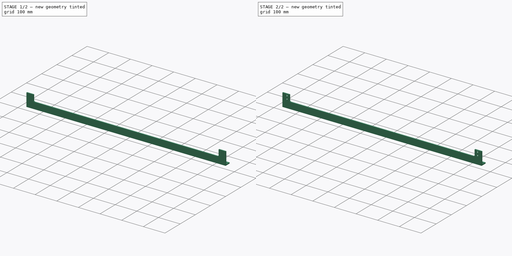
[diagram: build sequence overview — one tinted view per stage of 2, left to right]
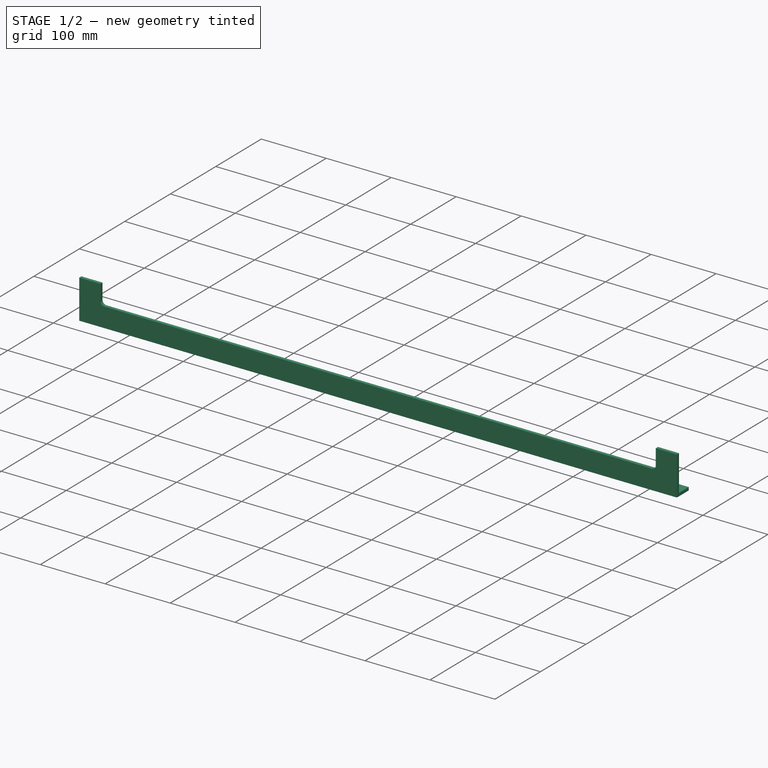
[diagram: stage 1 of 2 — iso view after this stage's code; geometry added in this stage tinted green]
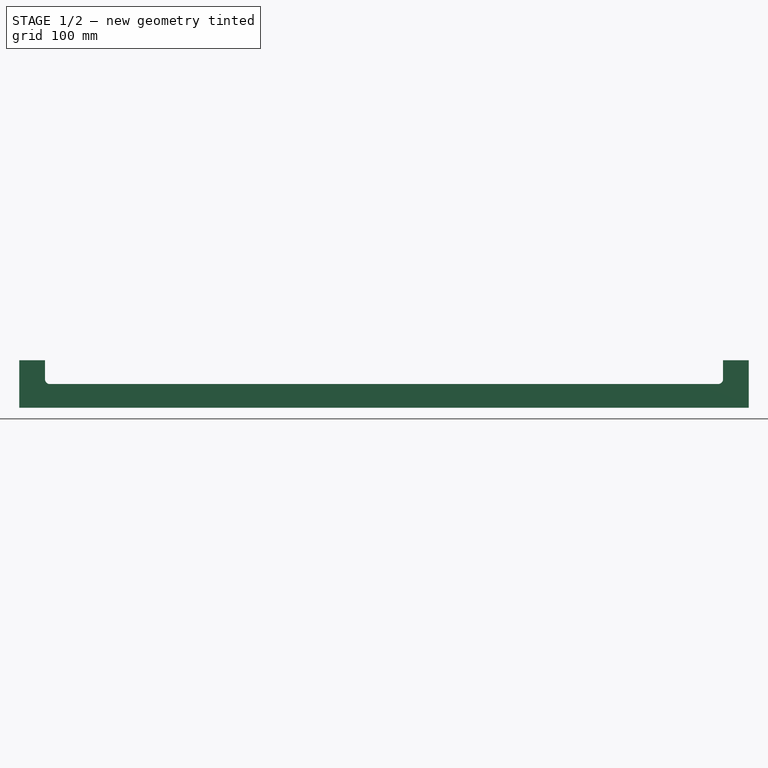
[diagram: stage 1 of 2 — front view after this stage's code; geometry added in this stage tinted green]
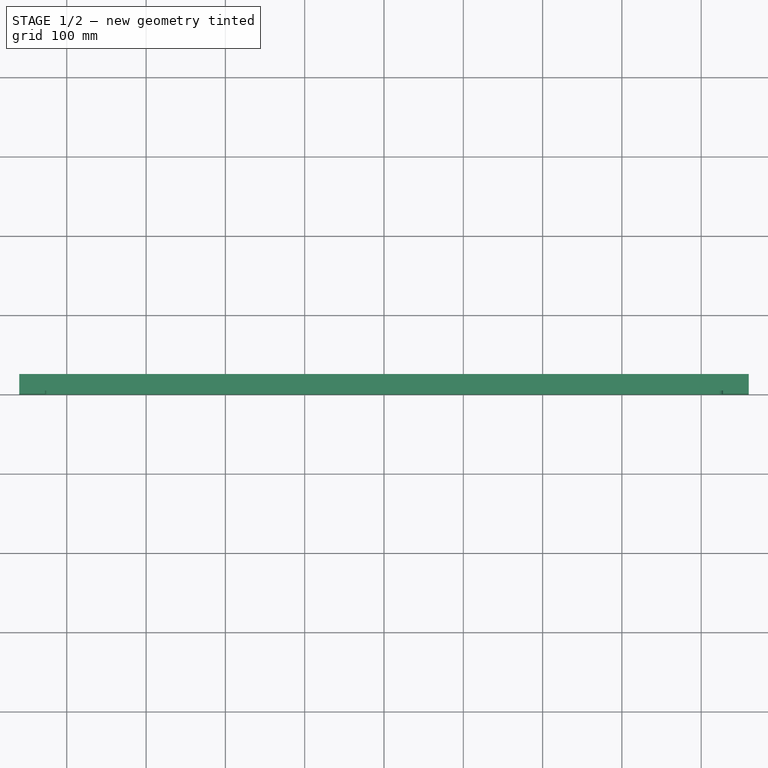
[diagram: stage 1 of 2 — top view after this stage's code; geometry added in this stage tinted green]
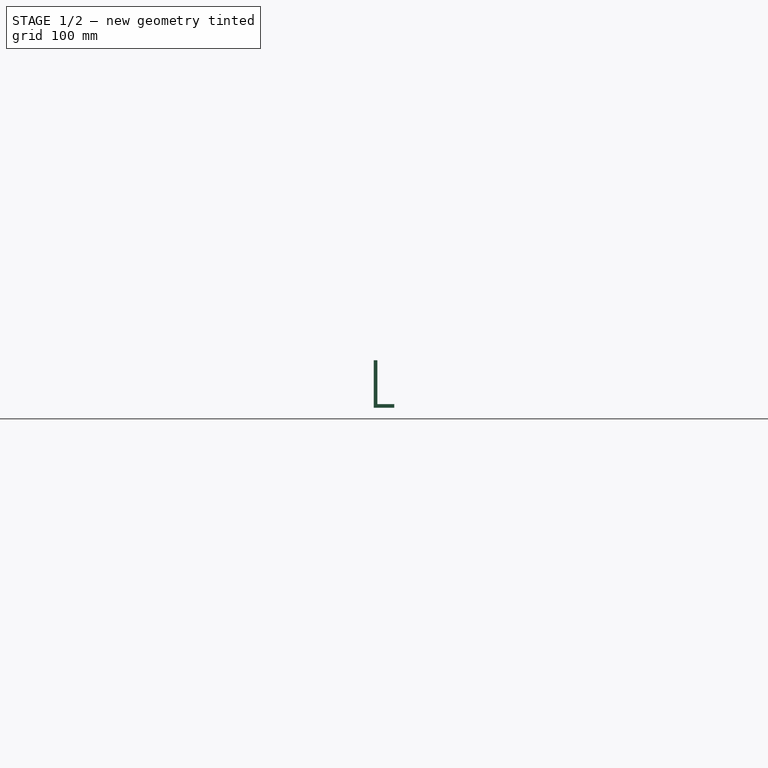
[diagram: stage 1 of 2 — right view after this stage's code; geometry added in this stage tinted green]
FCSTD DOCUMENT  (FreeCAD 1.1R40971 (Git))
Label: x-frame
License: All rights reserved
LicenseURL: http://en.wikipedia.org/wiki/All_rights_reserved
objects: Sketcher::SketchObject×4, PartDesign::Pocket×2, PartDesign::Pad×1, PartDesign::Hole×1, PartDesign::Body×1, App::Point×1
note: 21 computed .brp shape members not serialized (recipe doc carries the construction recipe); baked Part::Feature solids carry a one-line shape summary decoded from their .brp

FEATURE [Sketcher::SketchObject] Sketch
  ArcFitTolerance = 0
  ExternalTypes = [0]
  FullyConstrained = true
  MakeInternals = false
  Placement = pos=(0,0,0) rot=(0.57735,0.57735,0.57735;2.0944rad)
  sketch-geometry (6):
    g0: LineSegment StartX=0 StartY=60 StartZ=0 EndX=4.7 EndY=60 EndZ=0
    g1: LineSegment StartX=26 StartY=4.7 StartZ=0 EndX=26 EndY=0 EndZ=0
    g2: LineSegment StartX=26 StartY=0 StartZ=0 EndX=0 EndY=0 EndZ=0
    g3: LineSegment StartX=0 StartY=0 StartZ=0 EndX=0 EndY=60 EndZ=0
    g4: LineSegment StartX=26 StartY=4.7 StartZ=0 EndX=4.7 EndY=4.7 EndZ=0
    g5: LineSegment StartX=4.7 StartY=4.7 StartZ=0 EndX=4.7 EndY=60 EndZ=0
  constraints (17):
    c: Coincident(g1,g2)
    c: Coincident(g2,g3)
    c: Coincident(g3,g0)
    c: Horizontal(g0)
    c: Horizontal(g2)
    c: Vertical(g1)
    c: Vertical(g3)
    c: Coincident(g4,g5)
    c: Horizontal(g4)
    c: Vertical(g5)
    c: Coincident(g5,g0)
    c: Coincident(g4,g1)
    c: Equal(g1,g0)
    c: DistanceY(g1,g1) = 4.7
    c: DistanceX(g2,g2) = 26
    c: DistanceY(g3,g3) = 60
    c: Coincident(g2,g-1)
FEATURE [PartDesign::Pad] Pad
  Direction = (1,1e-16,-1e-16)
  Length = 920
  Length2 = 10
  Midplane = true
  Placement = pos=(0,0,0) rot=(0.57735,0.57735,0.57735;2.0944rad)
  Profile = -> Sketch
  ReferenceAxis = -> Sketch [N_Axis]
  Suppressed = false
  Type = 0
FEATURE [Sketcher::SketchObject] Sketch001
  ArcFitTolerance = 0
  AttachmentSupport = -> [Pad]
  ExternalTypes = [0]
  FullyConstrained = true
  MakeInternals = false
  MapMode = 5
  Placement = pos=(0,0,0) rot=(0.57735,0.57735,-0.57735;2.0944rad)
  sketch-geometry (8):
    g0: LineSegment StartX=-70 StartY=-427.5 StartZ=0 EndX=-36 EndY=-427.5 EndZ=0
    g1: LineSegment StartX=-30 StartY=-421.5 StartZ=0 EndX=-30 EndY=421.5 EndZ=0
    g2: LineSegment StartX=-36 StartY=427.5 StartZ=0 EndX=-70 EndY=427.5 EndZ=0
    g3: LineSegment StartX=-70 StartY=427.5 StartZ=0 EndX=-70 EndY=-427.5 EndZ=0
    g4: ArcOfCircle CenterX=-36 CenterY=-421.5 CenterZ=0 NormalX=0 NormalY=0 NormalZ=1 AngleXU=0 Radius=6 StartAngle=4.71239 EndAngle=6.28319
    g5: GeomPoint [constr] X=-30 Y=-427.5 Z=0
    g6: ArcOfCircle CenterX=-36 CenterY=421.5 CenterZ=0 NormalX=0 NormalY=0 NormalZ=1 AngleXU=0 Radius=6 StartAngle=-8.9e-13 EndAngle=1.5708
    g7: GeomPoint [constr] X=-30 Y=427.5 Z=0
  constraints (19):
    c: Coincident(g2,g3)
    c: Coincident(g3,g0)
    c: Horizontal(g0)
    c: Horizontal(g2)
    c: Vertical(g1)
    c: DistanceX(g7,g-1) = 30
    c: PointOnObject(g5,g0)
    c: PointOnObject(g5,g1)
    c: Tangent(g0,g4) = -1.5708
    c: Tangent(g1,g4) = -1.5708
    c: PointOnObject(g7,g1)
    c: PointOnObject(g7,g2)
    c: Tangent(g1,g6) = -1.5708
    c: Tangent(g2,g6) = -1.5708
    c: Equal(g6,g4)
    c: Diameter(g4) = 12
    c: DistanceX(g0,g-1) = 70
    c: Symmetric(g2,g0,g-1)
    c: DistanceY(g3,g3) = 855
FEATURE [PartDesign::Pocket] Pocket
  BaseFeature = -> Pad
  Direction = (0,1,0)
  Length = 5
  Length2 = 5
  Midplane = true
  Placement = pos=(0,0,0) rot=(0.57735,0.57735,0.57735;2.0944rad)
  Profile = -> Sketch001
  ReferenceAxis = -> Sketch001 [N_Axis]
  Suppressed = false
  Type = 1
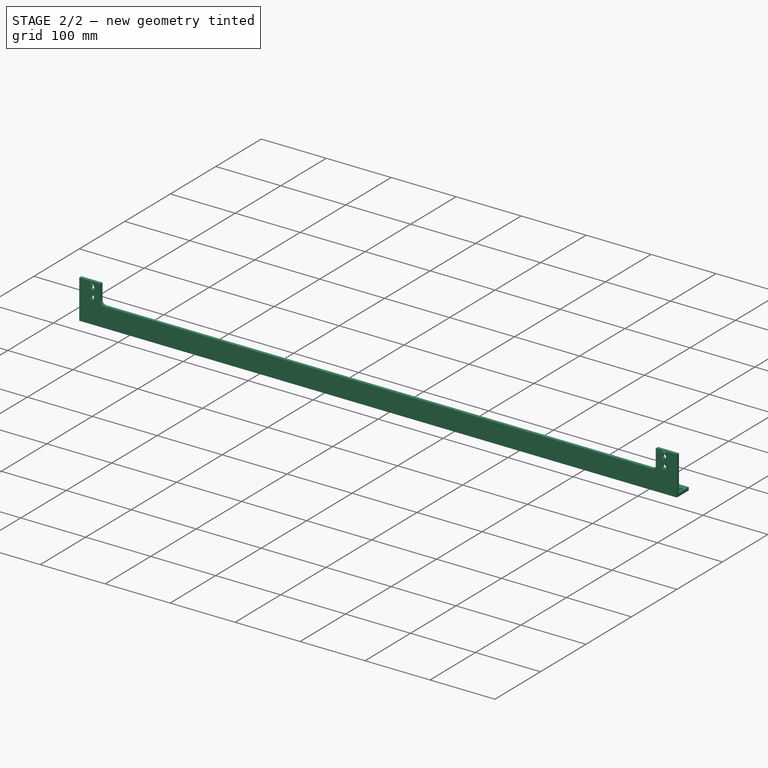
[diagram: stage 2 of 2 — iso view after this stage's code; geometry added in this stage tinted green]
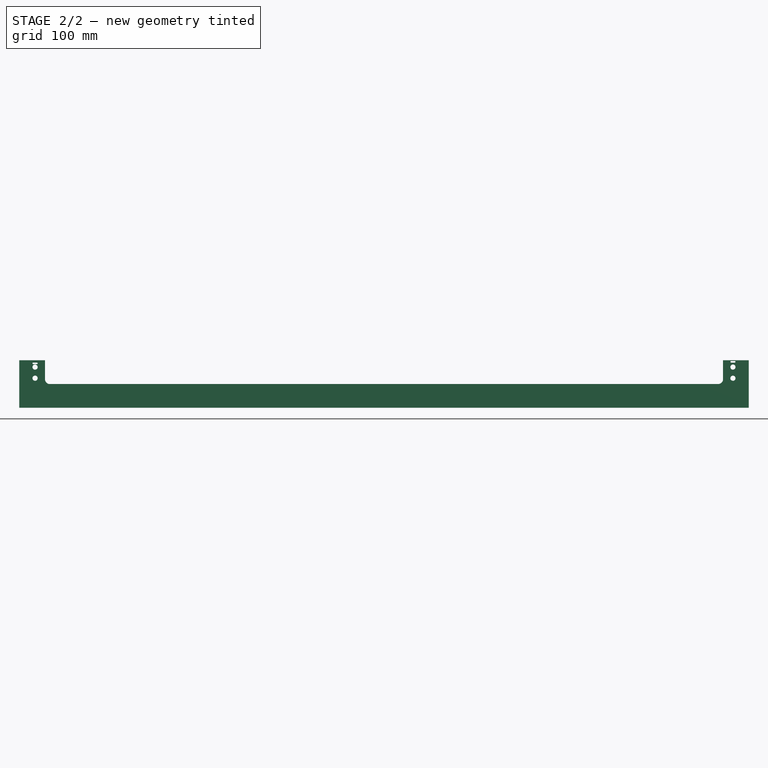
[diagram: stage 2 of 2 — front view after this stage's code; geometry added in this stage tinted green]
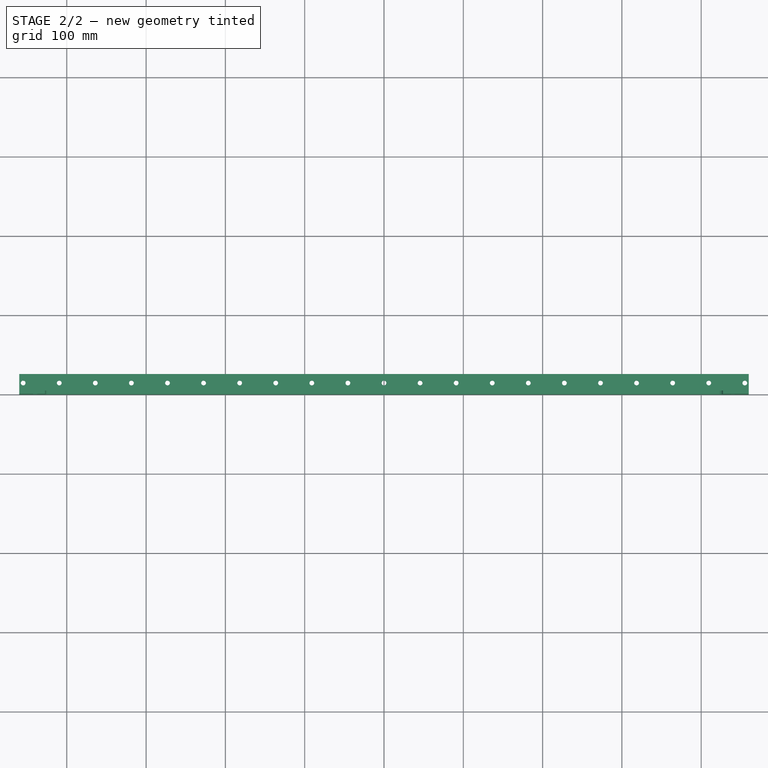
[diagram: stage 2 of 2 — top view after this stage's code; geometry added in this stage tinted green]
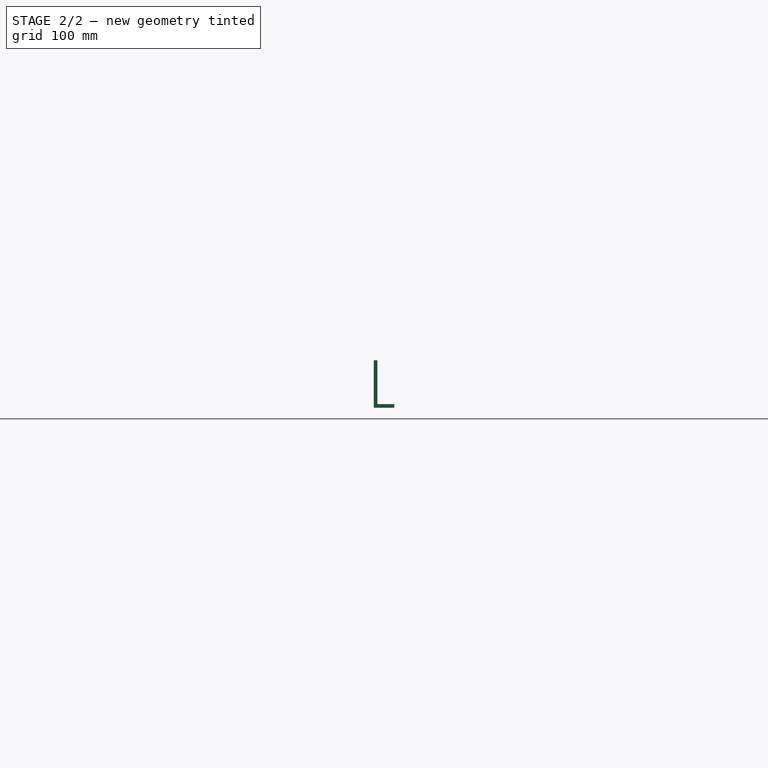
[diagram: stage 2 of 2 — right view after this stage's code; geometry added in this stage tinted green]
FEATURE [Sketcher::SketchObject] Sketch002
  ArcFitTolerance = 0
  AttachmentSupport = -> [Pocket]
  ExternalTypes = [0]
  FullyConstrained = true
  MakeInternals = false
  MapMode = 5
  Placement = pos=(2.1e-15,-2.6e-15,4.7) rot=(0,0,-1;1.5708rad)
  sketch-geometry (41):
    g0: Circle CenterX=-14.7 CenterY=455 CenterZ=0 NormalX=0 NormalY=0 NormalZ=1 AngleXU=0 Radius=2.5
    g1: Circle CenterX=-14.7 CenterY=409.5 CenterZ=0 NormalX=0 NormalY=0 NormalZ=1 AngleXU=0 Radius=2.5
    g2: LineSegment [constr] StartX=-14.7 StartY=455 StartZ=0 EndX=-14.7 EndY=409.5 EndZ=0
    g3: Circle CenterX=-14.7 CenterY=364 CenterZ=0 NormalX=0 NormalY=0 NormalZ=1 AngleXU=0 Radius=2.5
    g4: LineSegment [constr] StartX=-14.7 StartY=409.5 StartZ=0 EndX=-14.7 EndY=364 EndZ=0
    g5: Circle CenterX=-14.7 CenterY=318.5 CenterZ=0 NormalX=0 NormalY=0 NormalZ=1 AngleXU=0 Radius=2.5
    g6: LineSegment [constr] StartX=-14.7 StartY=364 StartZ=0 EndX=-14.7 EndY=318.5 EndZ=0
    g7: Circle CenterX=-14.7 CenterY=273 CenterZ=0 NormalX=0 NormalY=0 NormalZ=1 AngleXU=0 Radius=2.5
    g8: LineSegment [constr] StartX=-14.7 StartY=318.5 StartZ=0 EndX=-14.7 EndY=273 EndZ=0
    g9: Circle CenterX=-14.7 CenterY=227.5 CenterZ=0 NormalX=0 NormalY=0 NormalZ=1 AngleXU=0 Radius=2.5
    g10: LineSegment [constr] StartX=-14.7 StartY=273 StartZ=0 EndX=-14.7 EndY=227.5 EndZ=0
    g11: Circle CenterX=-14.7 CenterY=182 CenterZ=0 NormalX=0 NormalY=0 NormalZ=1 AngleXU=0 Radius=2.5
    g12: LineSegment [constr] StartX=-14.7 StartY=227.5 StartZ=0 EndX=-14.7 EndY=182 EndZ=0
    g13: Circle CenterX=-14.7 CenterY=136.5 CenterZ=0 NormalX=0 NormalY=0 NormalZ=1 AngleXU=0 Radius=2.5
    g14: LineSegment [constr] StartX=-14.7 StartY=182 StartZ=0 EndX=-14.7 EndY=136.5 EndZ=0
    g15: Circle CenterX=-14.7 CenterY=91 CenterZ=0 NormalX=0 NormalY=0 NormalZ=1 AngleXU=0 Radius=2.5
    g16: LineSegment [constr] StartX=-14.7 StartY=136.5 StartZ=0 EndX=-14.7 EndY=91 EndZ=0
    g17: Circle CenterX=-14.7 CenterY=45.5 CenterZ=0 NormalX=0 NormalY=0 NormalZ=1 AngleXU=0 Radius=2.5
    g18: LineSegment [constr] StartX=-14.7 StartY=91 StartZ=0 EndX=-14.7 EndY=45.5 EndZ=0
    g19: Circle CenterX=-14.7 CenterY=0 CenterZ=0 NormalX=0 NormalY=0 NormalZ=1 AngleXU=0 Radius=2.5
    g20: LineSegment [constr] StartX=-14.7 StartY=45.5 StartZ=0 EndX=-14.7 EndY=0 EndZ=0
    g21: Circle CenterX=-14.7 CenterY=-45.5 CenterZ=0 NormalX=0 NormalY=0 NormalZ=1 AngleXU=0 Radius=2.5
    g22: LineSegment [constr] StartX=-14.7 StartY=0 StartZ=0 EndX=-14.7 EndY=-45.5 EndZ=0
    g23: Circle CenterX=-14.7 CenterY=-91 CenterZ=0 NormalX=0 NormalY=0 NormalZ=1 AngleXU=0 Radius=2.5
    g24: LineSegment [constr] StartX=-14.7 StartY=-45.5 StartZ=0 EndX=-14.7 EndY=-91 EndZ=0
    g25: Circle CenterX=-14.7 CenterY=-136.5 CenterZ=0 NormalX=0 NormalY=0 NormalZ=1 AngleXU=0 Radius=2.5
    g26: LineSegment [constr] StartX=-14.7 StartY=-91 StartZ=0 EndX=-14.7 EndY=-136.5 EndZ=0
    g27: Circle CenterX=-14.7 CenterY=-182 CenterZ=0 NormalX=0 NormalY=0 NormalZ=1 AngleXU=0 Radius=2.5
    g28: LineSegment [constr] StartX=-14.7 StartY=-136.5 StartZ=0 EndX=-14.7 EndY=-182 EndZ=0
    g29: Circle CenterX=-14.7 CenterY=-227.5 CenterZ=0 NormalX=0 NormalY=0 NormalZ=1 AngleXU=0 Radius=2.5
    g30: LineSegment [constr] StartX=-14.7 StartY=-182 StartZ=0 EndX=-14.7 EndY=-227.5 EndZ=0
    g31: Circle CenterX=-14.7 CenterY=-273 CenterZ=0 NormalX=0 NormalY=0 NormalZ=1 AngleXU=0 Radius=2.5
    g32: LineSegment [constr] StartX=-14.7 StartY=-227.5 StartZ=0 EndX=-14.7 EndY=-273 EndZ=0
    g33: Circle CenterX=-14.7 CenterY=-318.5 CenterZ=0 NormalX=0 NormalY=0 NormalZ=1 AngleXU=0 Radius=2.5
    g34: LineSegment [constr] StartX=-14.7 StartY=-273 StartZ=0 EndX=-14.7 EndY=-318.5 EndZ=0
    g35: Circle CenterX=-14.7 CenterY=-364 CenterZ=0 NormalX=0 NormalY=0 NormalZ=1 AngleXU=0 Radius=2.5
    g36: LineSegment [constr] StartX=-14.7 StartY=-318.5 StartZ=0 EndX=-14.7 EndY=-364 EndZ=0
    g37: Circle CenterX=-14.7 CenterY=-409.5 CenterZ=0 NormalX=0 NormalY=0 NormalZ=1 AngleXU=0 Radius=2.5
    g38: LineSegment [constr] StartX=-14.7 StartY=-364 StartZ=0 EndX=-14.7 EndY=-409.5 EndZ=0
    g39: Circle CenterX=-14.7 CenterY=-455 CenterZ=0 NormalX=0 NormalY=0 NormalZ=1 AngleXU=0 Radius=2.5
    g40: LineSegment [constr] StartX=-14.7 StartY=-409.5 StartZ=0 EndX=-14.7 EndY=-455 EndZ=0
  constraints (102):
    c: Diameter(g0) = 5
    c: Equal(g0,g1) = 5
    c: Coincident(g0,g2)
    c: Coincident(g1,g2)
    c: Distance(g2) = 45.5
    c: Equal(g0,g3) = 5
    c: Coincident(g1,g4)
    c: Coincident(g3,g4)
    c: Equal(g2,g4)
    c: Parallel(g4,g2)
    c: Equal(g0,g5) = 5
    c: Coincident(g3,g6)
    c: Coincident(g5,g6)
    c: Equal(g2,g6)
    c: Parallel(g6,g2)
    c: Equal(g0,g7) = 5
    c: Coincident(g5,g8)
    c: Coincident(g7,g8)
    c: Equal(g2,g8)
    c: Parallel(g8,g2)
    c: Equal(g0,g9) = 5
    c: Coincident(g7,g10)
    c: Coincident(g9,g10)
    c: Equal(g2,g10)
    c: Parallel(g10,g2)
    c: Equal(g0,g11) = 5
    c: Coincident(g9,g12)
    c: Coincident(g11,g12)
    c: Equal(g2,g12)
    c: Parallel(g12,g2)
    c: Equal(g0,g13) = 5
    c: Coincident(g11,g14)
    c: Coincident(g13,g14)
    c: Equal(g2,g14)
    c: Parallel(g14,g2)
    c: Equal(g0,g15) = 5
    c: Coincident(g13,g16)
    c: Coincident(g15,g16)
    c: Equal(g2,g16)
    c: Parallel(g16,g2)
    c: Equal(g0,g17) = 5
    c: Coincident(g15,g18)
    c: Coincident(g17,g18)
    c: Equal(g2,g18)
    c: Parallel(g18,g2)
    c: Equal(g0,g19) = 5
    c: Coincident(g17,g20)
    c: Coincident(g19,g20)
    c: Equal(g2,g20)
    c: Parallel(g20,g2)
    c: Equal(g0,g21) = 5
    c: Coincident(g19,g22)
    c: Coincident(g21,g22)
    c: Equal(g2,g22)
    c: Parallel(g22,g2)
    c: Equal(g0,g23) = 5
    c: Coincident(g21,g24)
    c: Coincident(g23,g24)
    c: Equal(g2,g24)
    c: Parallel(g24,g2)
    c: Equal(g0,g25) = 5
    c: Coincident(g23,g26)
    c: Coincident(g25,g26)
    c: Equal(g2,g26)
    c: Parallel(g26,g2)
    c: Equal(g0,g27) = 5
    c: Coincident(g25,g28)
    c: Coincident(g27,g28)
    c: Equal(g2,g28)
    c: Parallel(g28,g2)
    c: Equal(g0,g29) = 5
    c: Coincident(g27,g30)
    c: Coincident(g29,g30)
    c: Equal(g2,g30)
    c: Parallel(g30,g2)
    c: Equal(g0,g31) = 5
    c: Coincident(g29,g32)
    c: Coincident(g31,g32)
    c: Equal(g2,g32)
    c: Parallel(g32,g2)
    c: Equal(g0,g33) = 5
    c: Coincident(g31,g34)
    c: Coincident(g33,g34)
    c: Equal(g2,g34)
    c: Parallel(g34,g2)
    c: Equal(g0,g35) = 5
    c: Coincident(g33,g36)
    c: Coincident(g35,g36)
    c: Equal(g2,g36)
    c: Parallel(g36,g2)
    c: Equal(g0,g37) = 5
    c: Coincident(g35,g38)
    c: Coincident(g37,g38)
    c: Equal(g2,g38)
    c: Parallel(g38,g2)
    c: Equal(g0,g39) = 5
    c: Coincident(g37,g40)
    c: Coincident(g39,g40)
    c: Equal(g2,g40)
    c: Parallel(g40,g2)
    c: DistanceX(g39,g-1) = 14.7
    c: Symmetric(g39,g0,g-1)
FEATURE [PartDesign::Hole] Hole
  BaseFeature = -> Pocket
  CustomThreadClearance = 0
  Depth = 25
  DepthType = 0
  Diameter = 6
  DrillForDepth = false
  DrillPoint = 1
  DrillPointAngle = 118
  HoleCutCountersinkAngle = 90
  HoleCutCustomValues = false
  HoleCutDepth = 0
  HoleCutDiameter = 6.1
  HoleCutType = 0
  ModelThread = false
  Placement = pos=(0,0,0) rot=(0.57735,0.57735,0.57735;2.0944rad)
  Profile = -> Sketch002
  Suppressed = false
  Tapered = false
  TaperedAngle = 90
  ThreadClass = 0
  ThreadDepth = 25
  ThreadDepthType = 0
  ThreadDiameter = 6
  ThreadDirection = 0
  ThreadFit = 0
  ThreadSize = 0
  ThreadType = 0
  Threaded = false
  UseCustomThreadClearance = false
FEATURE [Sketcher::SketchObject] Sketch003
  ArcFitTolerance = 0
  AttachmentSupport = -> [Hole]
  ExternalTypes = [0]
  FullyConstrained = true
  MakeInternals = false
  MapMode = 5
  Placement = pos=(-5.7e-15,4.7,3.7e-15) rot=(-0.57735,-0.57735,-0.57735;2.0944rad)
  sketch-geometry (18):
    g0: Circle CenterX=37.3 CenterY=-440 CenterZ=0 NormalX=0 NormalY=0 NormalZ=1 AngleXU=0 Radius=3.25
    g1: Circle CenterX=51.3 CenterY=-440 CenterZ=0 NormalX=0 NormalY=0 NormalZ=1 AngleXU=0 Radius=3.25
    g2: ArcOfCircle CenterX=56 CenterY=-437.75 CenterZ=0 NormalX=0 NormalY=0 NormalZ=1 AngleXU=0 Radius=1 StartAngle=2.4027e-12 EndAngle=3.14159
    g3: ArcOfCircle CenterX=56 CenterY=-442.25 CenterZ=0 NormalX=0 NormalY=0 NormalZ=1 AngleXU=0 Radius=1 StartAngle=3.14159 EndAngle=6.28319
    g4: LineSegment StartX=57 StartY=-437.75 StartZ=0 EndX=57 EndY=-442.25 EndZ=0
    g5: LineSegment StartX=55 StartY=-437.75 StartZ=0 EndX=55 EndY=-442.25 EndZ=0
    g6: Circle CenterX=37.3 CenterY=440 CenterZ=0 NormalX=0 NormalY=0 NormalZ=1 AngleXU=0 Radius=3.25
    g7: Circle CenterX=51.3 CenterY=440 CenterZ=0 NormalX=0 NormalY=0 NormalZ=1 AngleXU=0 Radius=3.25
    g8: LineSegment StartX=57 StartY=437.75 StartZ=0 EndX=57 EndY=442.25 EndZ=0
    g9: LineSegment StartX=59 StartY=442.25 StartZ=0 EndX=59 EndY=437.75 EndZ=0
    g10: ArcOfCircle CenterX=58 CenterY=437.75 CenterZ=0 NormalX=0 NormalY=0 NormalZ=1 AngleXU=0 Radius=1 StartAngle=3.14159 EndAngle=6.28319
    g11: ArcOfCircle CenterX=58 CenterY=442.25 CenterZ=0 NormalX=0 NormalY=0 NormalZ=1 AngleXU=0 Radius=1 StartAngle=5.7e-15 EndAngle=3.14159
    g12: LineSegment [constr] StartX=37.3 StartY=-440 StartZ=0 EndX=51.3 EndY=-440 EndZ=0
    g13: LineSegment [constr] StartX=51.3 StartY=-440 StartZ=0 EndX=57 EndY=-440 EndZ=0
    g14: LineSegment [constr] StartX=37.3 StartY=440 StartZ=0 EndX=51.3 EndY=440 EndZ=0
    g15: LineSegment [constr] StartX=51.3 StartY=440 StartZ=0 EndX=57 EndY=440 EndZ=0
    g16: GeomPoint [constr] X=51.3 Y=-443.25 Z=0
    g17: GeomPoint [constr] X=56 Y=-443.25 Z=0
  constraints (43):
    c: Equal(g0,g1)
    c: Diameter(g1) = 6.5
    c: Horizontal(g0,g1)
    c: DistanceX(g0,g1) = 14
    c: Parallel(g5,g4)
    c: Tangent(g2,g4) = 1.5708
    c: Tangent(g3,g5) = -1.5708
    c: Diameter(g2) = 2
    c: Vertical(g2,g3)
    c: Tangent(g2,g5) = -1.5708
    c: Tangent(g3,g4) = 1.5708
    c: DistanceX(g1,g2) = 3.7
    c: Vertical(g8)
    c: Vertical(g9)
    c: Equal(g0,g6)
    c: Equal(g6,g7)
    c: Horizontal(g6,g7)
    c: Tangent(g10,g9) = 1.5708
    c: Tangent(g10,g8) = 1.5708
    c: Tangent(g11,g8) = 1.5708
    c: Tangent(g11,g9) = 1.5708
    c: Equal(g2,g11)
    c: Equal(g8,g4)
    c: Coincident(g12,g0)
    c: Coincident(g12,g1)
    c: Coincident(g13,g1)
    c: Horizontal(g13)
    c: Symmetric(g2,g3,g13)
    c: Coincident(g14,g6)
    c: Coincident(g14,g7)
    c: Coincident(g15,g7)
    c: Horizontal(g15)
    c: Symmetric(g8,g8,g15)
    c: Equal(g15,g13)
    c: Equal(g12,g14)
    c: Symmetric(g6,g0,g-1)
    c: DistanceY(g0,g6) = 880
    c: PointOnObject(g16,g1)
    c: PointOnObject(g17,g3)
    c: Vertical(g17,g3)
    c: Vertical(g16,g1)
    c: Horizontal(g16,g17)
    c: DistanceX(g-1,g2) = 57
FEATURE [PartDesign::Pocket] Pocket001
  BaseFeature = -> Hole
  Direction = (1e-15,-1,1e-16)
  Length = 5
  Length2 = 5
  Placement = pos=(0,0,0) rot=(0.57735,0.57735,0.57735;2.0944rad)
  Profile = -> Sketch003
  ReferenceAxis = -> Sketch003 [N_Axis]
  Suppressed = false
  Type = 1
FEATURE [PartDesign::Body] Body
  AllowCompound = false
  Group = -> [Sketch,Pad,Sketch001,Pocket,Sketch002,Hole,Sketch003,Pocket001]
  Origin = -> Origin
  Tip = -> Pocket001
FEATURE [App::Point] Origin001  label="Origin"
  Role = Origin
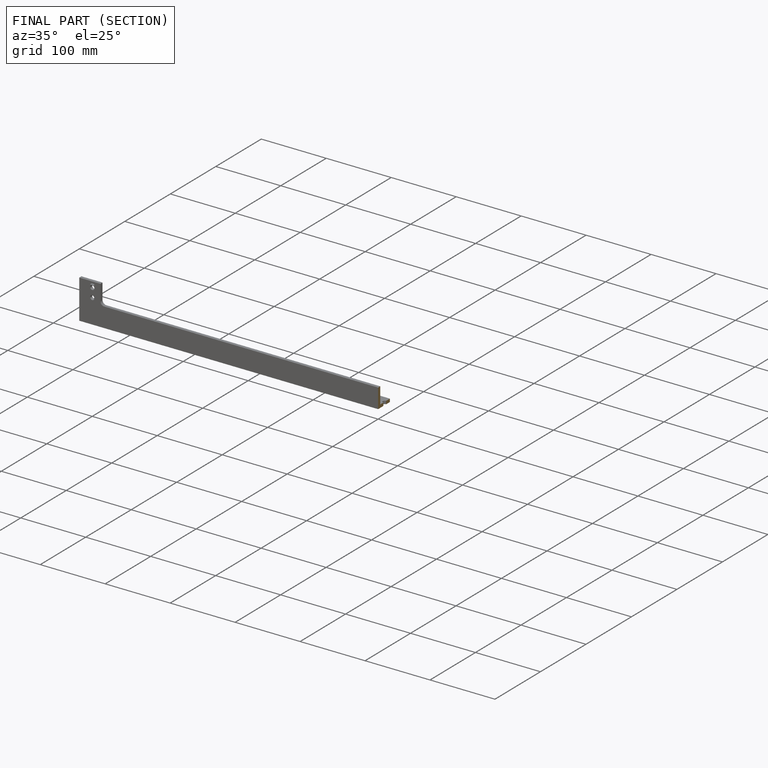
[diagram: finished part — half-section view (interior)]
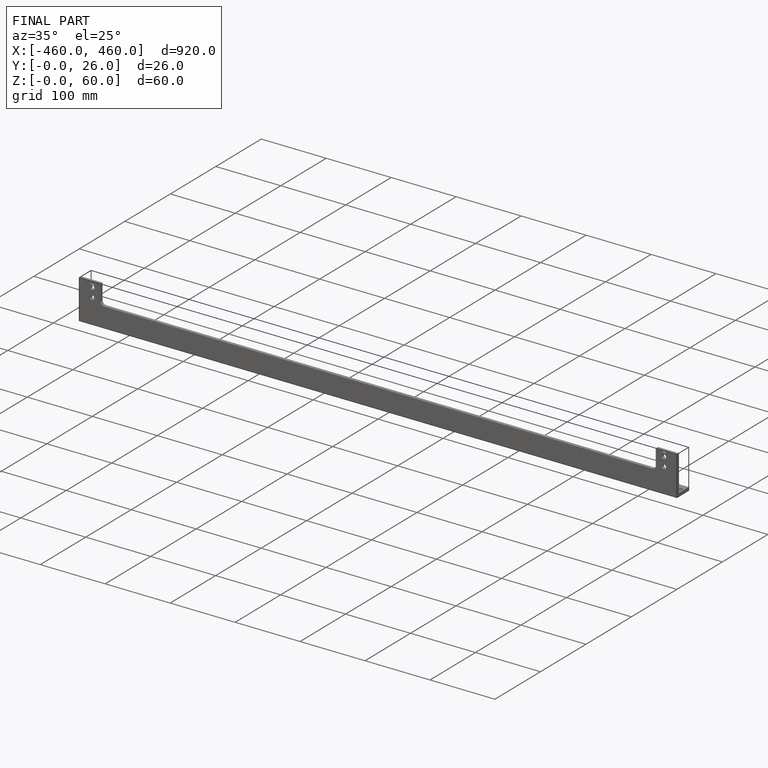
[diagram: finished part — iso view with bounding-box wireframe]
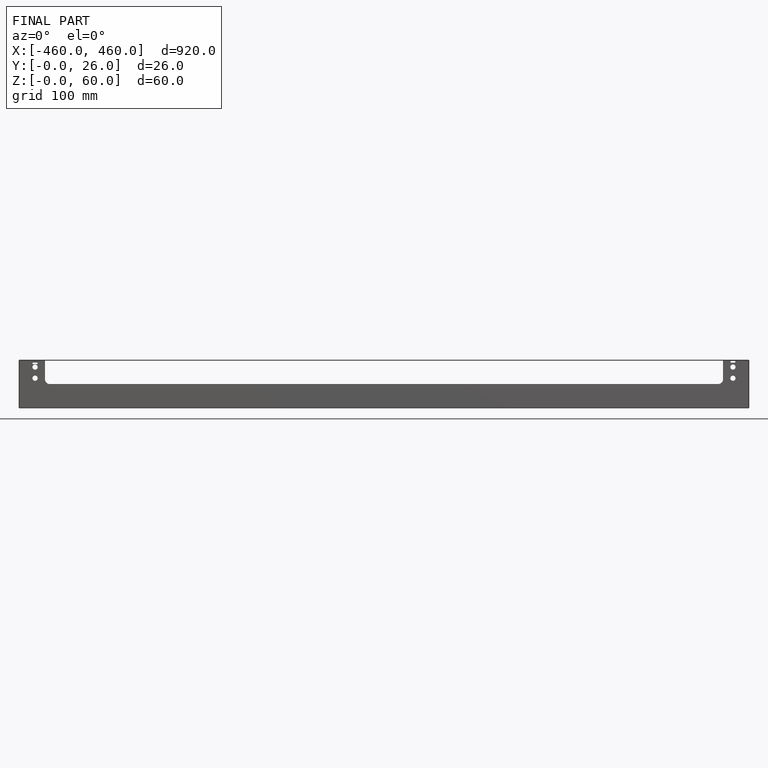
[diagram: finished part — front view with bounding-box wireframe]
